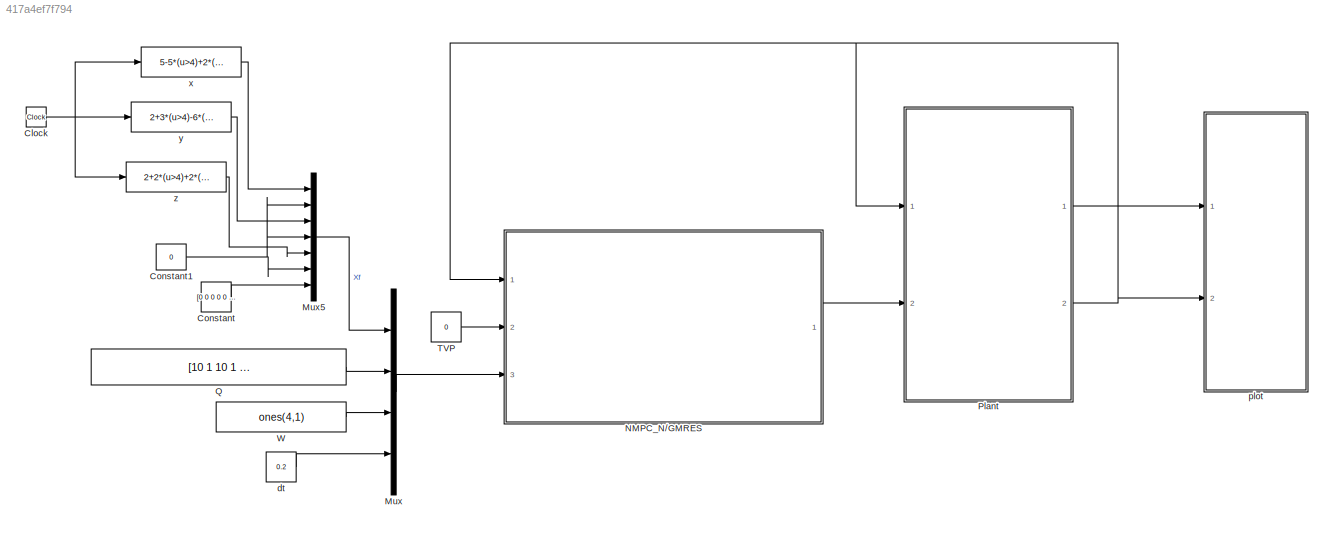
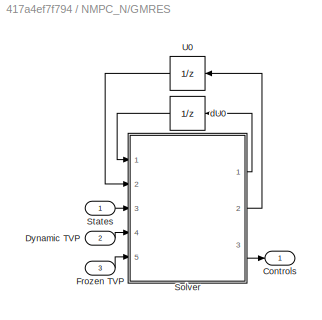
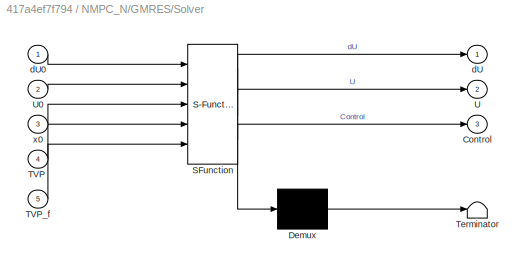
MODEL slx_417a4ef7f794
KIND model
CONFIG AbsTol = auto
CONFIG EnableMultiTasking = on
CONFIG FixedStep = 0.001
CONFIG MaxStep = auto
CONFIG MinStep = auto
CONFIG RelTol = 1e-3
CONFIG SampleTimeConstraint = Unconstrained
CONFIG Solver = FixedStepAuto
CONFIG SolverName = FixedStepAuto
CONFIG StartTime = 0.0
CONFIG StopTime = 12
BLOCK [Clock] Clock
BLOCK [Constant] Constant
  Value = [0 0 0 0 0 0]
BLOCK [Constant] Constant1
  Value = 0
BLOCK [Mux] Mux
  DisplayOption = bar
  Ports = [4, 1]
BLOCK [Mux] Mux5
  DisplayOption = bar
  Inputs = 7
  Ports = [7, 1]
BLOCK [SubSystem] NMPC_N//GMRES
  Permissions = ReadOnly
  Ports = [3, 1]
  RequestExecContextInheritance = off
  ShowPortLabels = FromPortBlockName
  Variant = off
BLOCK [Outport] NMPC_N//GMRES/Controls
  IconDisplay = Port number
BLOCK [Inport] NMPC_N//GMRES/Dynamic TVP
  IconDisplay = Port number
  Port = 2
BLOCK [Inport] NMPC_N//GMRES/Frozen TVP
  IconDisplay = Port number
  Port = 3
BLOCK [SubSystem] NMPC_N//GMRES/Solver
  ErrorFcn = Stateflow.Translate.translate
  PermitHierarchicalResolution = ExplicitOnly
  Ports = [5, 3]
  RequestExecContextInheritance = off
  SFBlockType = MATLAB Function
  ShowPortLabels = none
  TreatAsAtomicUnit = on
  Variant = off
BLOCK [Demux] NMPC_N//GMRES/Solver/ Demux 
  Outputs = 1
  Ports = [1, 1]
BLOCK [S-Function] NMPC_N//GMRES/Solver/ SFunction 
  EnableBusSupport = on
  FunctionName = sf_sfun
  PortCounts = [5 4]
  Ports = [5, 4]
  SFcnIsStateOwnerBlock = off
  SFunctionDeploymentMode = off
  Tag = Stateflow S-Function Quadrotor 1
BLOCK [Terminator] NMPC_N//GMRES/Solver/ Terminator 
BLOCK [Outport] NMPC_N//GMRES/Solver/Control
  IconDisplay = Port number
  Port = 3
BLOCK [Inport] NMPC_N//GMRES/Solver/TVP
  IconDisplay = Port number
  Port = 4
BLOCK [Inport] NMPC_N//GMRES/Solver/TVP_f
  IconDisplay = Port number
  Port = 5
BLOCK [Outport] NMPC_N//GMRES/Solver/U
  IconDisplay = Port number
  Port = 2
BLOCK [Inport] NMPC_N//GMRES/Solver/U0
  IconDisplay = Port number
  Port = 2
BLOCK [Outport] NMPC_N//GMRES/Solver/dU
  IconDisplay = Port number
BLOCK [Inport] NMPC_N//GMRES/Solver/dU0
  IconDisplay = Port number
BLOCK [Inport] NMPC_N//GMRES/Solver/x0
  IconDisplay = Port number
  Port = 3
BLOCK [Inport] NMPC_N//GMRES/States
  IconDisplay = Port number
BLOCK [UnitDelay] NMPC_N//GMRES/U0
  InitialCondition = U0
  InputProcessing = Elements as channels (sample based)
  SampleTime = -1
BLOCK [UnitDelay] NMPC_N//GMRES/dU0
  InitialCondition = dU0
  InputProcessing = Elements as channels (sample based)
  SampleTime = -1
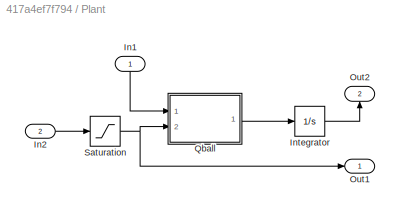
BLOCK [SubSystem] Plant
  Ports = [2, 2]
  RequestExecContextInheritance = off
  Variant = off
BLOCK [Inport] Plant/In1
  IconDisplay = Port number
BLOCK [Inport] Plant/In2
  IconDisplay = Port number
  Port = 2
BLOCK [Integrator] Plant/Integrator
  InitialCondition = [0 0 0 0 0 0 0 0 0 0 0 0]'
  Ports = [1, 1]
BLOCK [Outport] Plant/Out1
  IconDisplay = Port number
BLOCK [Outport] Plant/Out2
  IconDisplay = Port number
  Port = 2
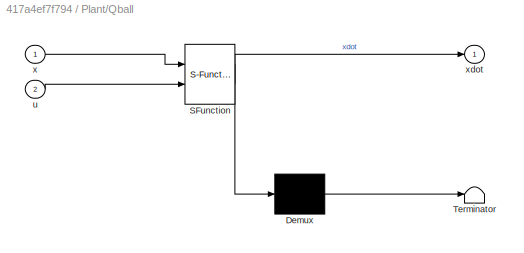
BLOCK [SubSystem] Plant/Qball
  ErrorFcn = Stateflow.Translate.translate
  PermitHierarchicalResolution = ExplicitOnly
  Ports = [2, 1]
  RequestExecContextInheritance = off
  SFBlockType = MATLAB Function
  TreatAsAtomicUnit = on
  Variant = off
BLOCK [Demux] Plant/Qball/ Demux 
  Outputs = 1
  Ports = [1, 1]
BLOCK [S-Function] Plant/Qball/ SFunction 
  EnableBusSupport = on
  FunctionName = sf_sfun
  PortCounts = [2 2]
  Ports = [2, 2]
  SFcnIsStateOwnerBlock = off
  SFunctionDeploymentMode = off
  Tag = Stateflow S-Function Quadrotor 2
BLOCK [Terminator] Plant/Qball/ Terminator 
BLOCK [Inport] Plant/Qball/u
  IconDisplay = Port number
  Port = 2
BLOCK [Inport] Plant/Qball/x
  IconDisplay = Port number
BLOCK [Outport] Plant/Qball/xdot
  IconDisplay = Port number
BLOCK [Saturate] Plant/Saturation
  InputPortMap = u0
  LowerLimit = 0
  Ports = [1, 1]
  UpperLimit = inf
BLOCK [Constant] Q
  Value = [10 1 10 1 15 1 1 1 1 1 1 1]
BLOCK [Constant] TVP
  Value = 0
BLOCK [Constant] W
  Value = ones(4,1)
BLOCK [Constant] dt
  Value = 0.2
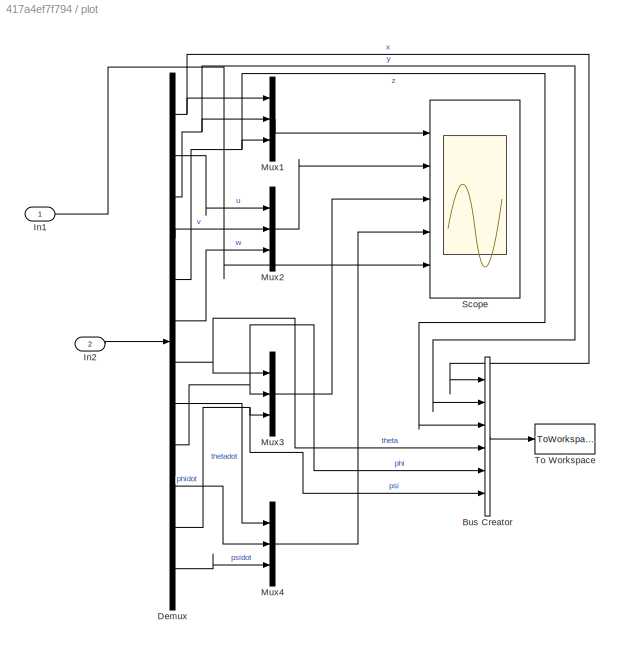
BLOCK [SubSystem] plot
  Ports = [2]
  RequestExecContextInheritance = off
  Variant = off
BLOCK [BusCreator] plot/Bus Creator
  DisplayOption = bar
  InheritFromInputs = on
  Inputs = 6
  Ports = [6, 1]
BLOCK [Demux] plot/Demux
  DisplayOption = bar
  Outputs = 12
  Ports = [1, 12]
BLOCK [Inport] plot/In1
  IconDisplay = Port number
BLOCK [Inport] plot/In2
  IconDisplay = Port number
  Port = 2
BLOCK [Mux] plot/Mux1
  DisplayOption = bar
  Inputs = 3
  Ports = [3, 1]
BLOCK [Mux] plot/Mux2
  DisplayOption = bar
  Inputs = 3
  Ports = [3, 1]
BLOCK [Mux] plot/Mux3
  DisplayOption = bar
  Inputs = 3
  Ports = [3, 1]
BLOCK [Mux] plot/Mux4
  DisplayOption = bar
  Inputs = 3
  Ports = [3, 1]
BLOCK [Scope] plot/Scope
  NumInputPorts = 5
  Ports = [5]
  ScopeSpecificationString = Simulink.scopes.TimeScopeBlockCfg('CurrentConfiguration', extmgr.ConfigurationSet(extmgr.Configuration('Core','General UI',true),extmgr.Configuration('Core','Source UI',true),extmgr.Configuration('Sources','WiredSimulink',true),extmgr.Configuration('Visuals','Time Domain',true,'SerializedDisplays',{struct('MinYLimReal','-1.88354','MaxYLimReal','6.86272','YLabelReal','','MinYLimMag','0.00000','MaxY...<+4749ch>
BLOCK [ToWorkspace] plot/To Workspace
  FixptAsFi = on
  MaxDataPoints = inf
  Ports = [1]
  SampleTime = -1
  Save2DSignal = 3-D array (concatenate along third dimension)
  SaveFormat = Timeseries
  VariableName = res
BLOCK [Fcn] x
  Expr = 5-5*(u>4)+2*(u>8)
BLOCK [Fcn] y
  Expr = 2+3*(u>4)-6*(u>8)
BLOCK [Fcn] z
  Expr = 2+2*(u>4)+2*(u>8)
NET Clock:1 -> x:1, y:1, z:1
NET Constant1:1 -> Mux5:2, Mux5:4, Mux5:6
LINE Constant:1 -> Mux5:7
LINE Mux5:1 -> Mux:1
LINE Mux:1 -> NMPC_N//GMRES:3
LINE NMPC_N//GMRES/Dynamic TVP:1 -> NMPC_N//GMRES/Solver:4
LINE NMPC_N//GMRES/Frozen TVP:1 -> NMPC_N//GMRES/Solver:5
LINE NMPC_N//GMRES/Solver:1 -> NMPC_N//GMRES/dU0:1
LINE NMPC_N//GMRES/Solver:2 -> NMPC_N//GMRES/U0:1
LINE NMPC_N//GMRES/Solver:3 -> NMPC_N//GMRES/Controls:1
LINE NMPC_N//GMRES/States:1 -> NMPC_N//GMRES/Solver:3
LINE NMPC_N//GMRES/U0:1 -> NMPC_N//GMRES/Solver:2
LINE NMPC_N//GMRES/dU0:1 -> NMPC_N//GMRES/Solver:1
LINE NMPC_N//GMRES:1 -> Plant:2
LINE Plant/In1:1 -> Plant/Qball:1
LINE Plant/In2:1 -> Plant/Saturation:1
LINE Plant/Integrator:1 -> Plant/Out2:1
LINE Plant/Qball:1 -> Plant/Integrator:1
NET Plant/Saturation:1 -> Plant/Out1:1, Plant/Qball:2
LINE Plant:1 -> plot:1
NET Plant:2 -> NMPC_N//GMRES:1, Plant:1, plot:2
LINE Q:1 -> Mux:2
LINE TVP:1 -> NMPC_N//GMRES:2
LINE W:1 -> Mux:3
LINE dt:1 -> Mux:4
LINE plot/Bus Creator:1 -> plot/To Workspace:1
NET plot/Demux:1 -> plot/Bus Creator:1, plot/Mux1:1
LINE plot/Demux:10 -> plot/Mux4:2
NET plot/Demux:11 -> plot/Bus Creator:6, plot/Mux3:3
LINE plot/Demux:12 -> plot/Mux4:3
LINE plot/Demux:2 -> plot/Mux2:1
NET plot/Demux:3 -> plot/Bus Creator:2, plot/Mux1:2
LINE plot/Demux:4 -> plot/Mux2:2
NET plot/Demux:5 -> plot/Bus Creator:3, plot/Mux1:3
LINE plot/Demux:6 -> plot/Mux2:3
NET plot/Demux:7 -> plot/Bus Creator:4, plot/Mux3:1
LINE plot/Demux:8 -> plot/Mux4:1
NET plot/Demux:9 -> plot/Bus Creator:5, plot/Mux3:2
LINE plot/In1:1 -> plot/Scope:5
LINE plot/In2:1 -> plot/Demux:1
LINE plot/Mux1:1 -> plot/Scope:1
LINE plot/Mux2:1 -> plot/Scope:2
LINE plot/Mux3:1 -> plot/Scope:3
LINE plot/Mux4:1 -> plot/Scope:4
LINE x:1 -> Mux5:1
LINE y:1 -> Mux5:3
LINE z:1 -> Mux5:5
note: NET lines group one-source signal fan-out (src -> all destinations, sorted); 1:1 wires keep LINE
CHART NMPC_N//GMRES/Solver states=1 transitions=1
  STATE_LABEL 'eML_blk_kernel()'
  STATE_LABEL 'SCRIPT:\n%% NGMRES  NGMRES NGMRES\nfunction [dU,U,Control] = NMPCBlock(dU0,U0,x0,TVP,TVP_f)\n[dU,U,Control]=NMPC(dU0,U0,x0,TVP,TVP_f);\n\n'
CHART Plant/Qball states=1 transitions=1
  STATE_LABEL 'eML_blk_kernel()'
  STATE_LABEL 'SCRIPT:\nfunction xdot = Qball(x,u)\nXk1=x(1);\nXk2=x(2);\nXk3=x(3);\nXk4=x(4);\nXk5=x(5);\nXk6=x(6);\nXk7=x(7);\nXk8=x(8);\nXk9=x(9);\nXk10=x(10);\nXk11=x(11);\nXk12=x(12);\nUk1=u(1);\nUk2=u(2);\nUk3=u(3);\nUk4=u(4);\nxdot=zeros(12,1);\nxdot(1)=Xk2;\nxdot(2)=(5*(sin(Xk9)*sin(Xk11) + cos(Xk9)*cos(Xk11)*sin(Xk7))*(Uk1 + Uk2 + Uk3 + Uk4))/7;\nxdot(3)=Xk4;\nxdot(4)=-(5*(cos(Xk11)*sin(Xk9) - cos(Xk9)*sin(Xk7)*sin(Xk11))*(U...<+262ch>'
